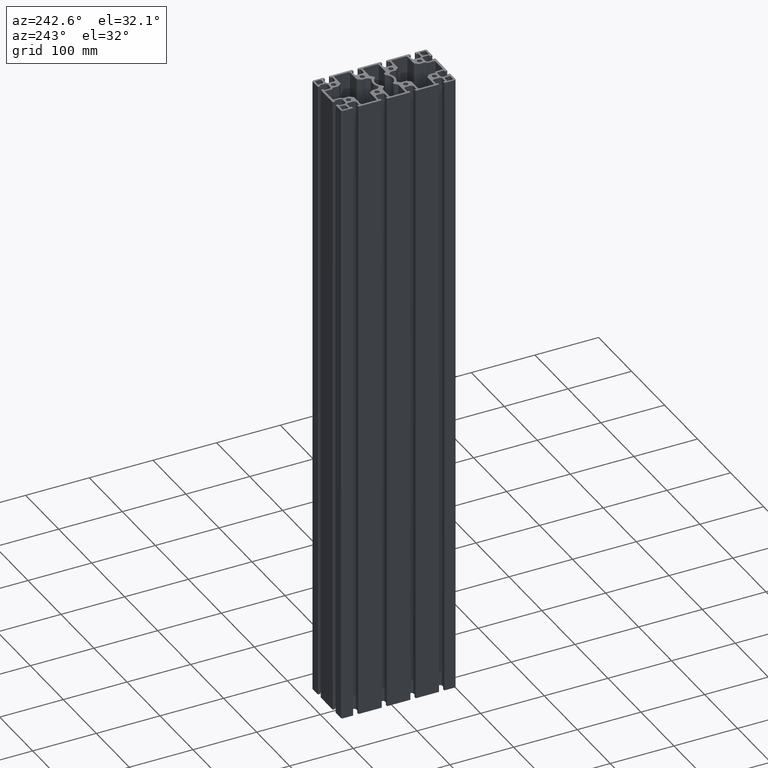
[diagram: clean part render]
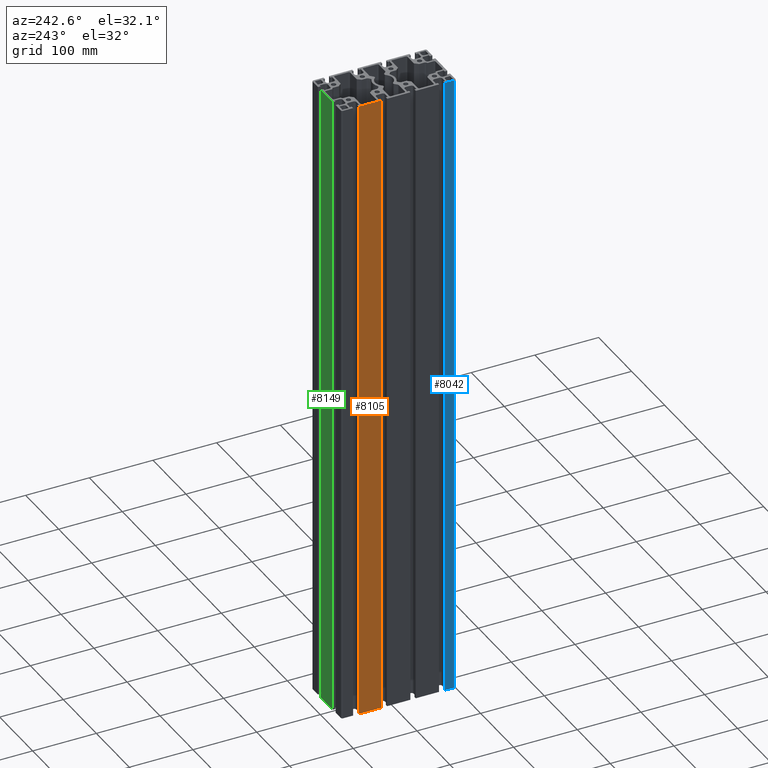
[diagram: same view with three faces highlighted in distinct colors, each labeled with its STEP entity id]
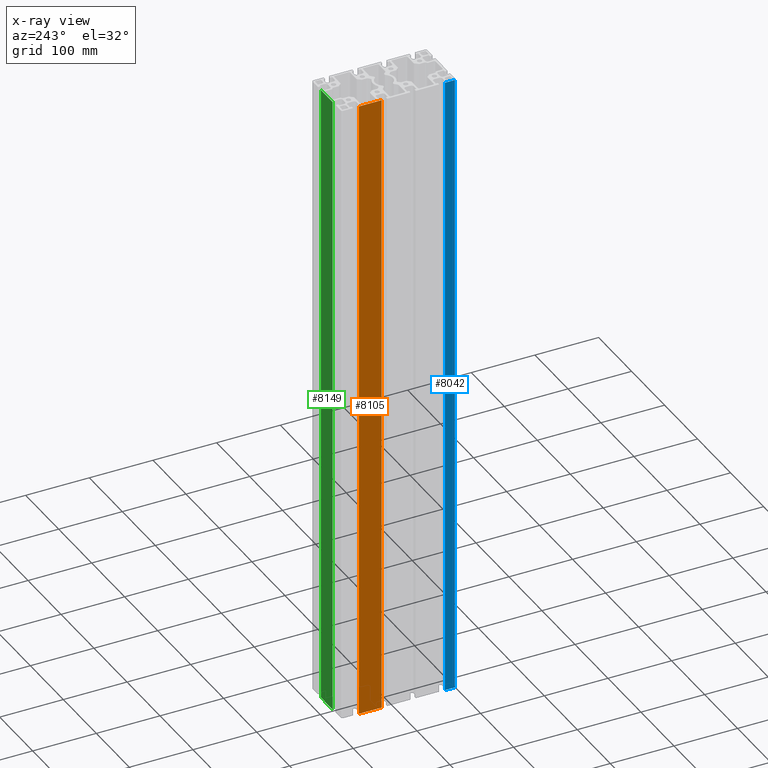
[diagram: x-ray of the same camera — body ghosted, the three highlighted faces saturated]
A machine part, auxiliary view with three faces highlighted in distinct colors.
The next image is the same camera in x-ray (body ghosted, the three faces saturated) — at least one of them is partly hidden behind the body in this view.
Their STEP definitions:

[orange] entity #8105 — the highlighted planar face has unit normal (-1, -0, 0).
#163=PLANE('',#8798);
#511=FACE_OUTER_BOUND('',#921,.T.);
#921=EDGE_LOOP('',(#6209,#6210,#6211,#6212));
#1597=LINE('',#13005,#2437);
#1598=LINE('',#13008,#2438);
#1599=LINE('',#13010,#2439);
#1600=LINE('',#13011,#2440);
#2437=VECTOR('',#10586,10.);
#2438=VECTOR('',#10589,10.);
#2439=VECTOR('',#10590,10.);
#2440=VECTOR('',#10591,10.);
#3673=VERTEX_POINT('',#13001);
#3674=VERTEX_POINT('',#13003);
#3675=VERTEX_POINT('',#13007);
#3676=VERTEX_POINT('',#13009);
#4737=EDGE_CURVE('',#3673,#3674,#1597,.T.);
#4738=EDGE_CURVE('',#3673,#3675,#1598,.T.);
#4739=EDGE_CURVE('',#3676,#3674,#1599,.T.);
#4740=EDGE_CURVE('',#3675,#3676,#1600,.T.);
#6209=ORIENTED_EDGE('',*,*,#4738,.F.);
#6210=ORIENTED_EDGE('',*,*,#4737,.T.);
#6211=ORIENTED_EDGE('',*,*,#4739,.F.);
#6212=ORIENTED_EDGE('',*,*,#4740,.F.);
#8105=ADVANCED_FACE('',(#511),#163,.T.);
#8798=AXIS2_PLACEMENT_3D('',#13006,#10587,#10588);
#10586=DIRECTION('',(0.,0.,1.));
#10587=DIRECTION('center_axis',(-1.,-2.95561894286766E-13,0.));
#10588=DIRECTION('ref_axis',(2.95561894286766E-13,-1.,0.));
#10589=DIRECTION('',(-2.95561894286766E-13,1.,0.));
#10590=DIRECTION('',(2.95561894286766E-13,-1.,0.));
#10591=DIRECTION('',(0.,0.,1.));
#13001=CARTESIAN_POINT('',(-45.0000000000081,27.1499999999868,0.));
#13003=CARTESIAN_POINT('',(-45.0000000000081,27.1499999999868,1000.));
#13005=CARTESIAN_POINT('',(-45.0000000000081,27.1499999999868,0.));
#13006=CARTESIAN_POINT('Origin',(-45.0000000000186,62.8499999999866,0.));
#13007=CARTESIAN_POINT('',(-45.0000000000186,62.8499999999866,0.));
#13008=CARTESIAN_POINT('',(-45.0000000000081,27.1499999999868,0.));
#13009=CARTESIAN_POINT('',(-45.0000000000186,62.8499999999866,1000.));
#13010=CARTESIAN_POINT('',(-45.0000000000081,27.1499999999868,1000.));
#13011=CARTESIAN_POINT('',(-45.0000000000186,62.8499999999866,0.));

[blue] entity #8042 — the highlighted planar face has unit normal (-1, -0, 0).
#124=PLANE('',#8687);
#448=FACE_OUTER_BOUND('',#858,.T.);
#858=EDGE_LOOP('',(#5957,#5958,#5959,#5960));
#1456=LINE('',#12627,#2296);
#1457=LINE('',#12630,#2297);
#1458=LINE('',#12632,#2298);
#1459=LINE('',#12633,#2299);
#2296=VECTOR('',#10223,10.);
#2297=VECTOR('',#10226,10.);
#2298=VECTOR('',#10227,10.);
#2299=VECTOR('',#10228,10.);
#3547=VERTEX_POINT('',#12623);
#3548=VERTEX_POINT('',#12625);
#3549=VERTEX_POINT('',#12629);
#3550=VERTEX_POINT('',#12631);
#4548=EDGE_CURVE('',#3547,#3548,#1456,.T.);
#4549=EDGE_CURVE('',#3547,#3549,#1457,.T.);
#4550=EDGE_CURVE('',#3550,#3548,#1458,.T.);
#4551=EDGE_CURVE('',#3549,#3550,#1459,.T.);
#5957=ORIENTED_EDGE('',*,*,#4549,.F.);
#5958=ORIENTED_EDGE('',*,*,#4548,.T.);
#5959=ORIENTED_EDGE('',*,*,#4550,.F.);
#5960=ORIENTED_EDGE('',*,*,#4551,.F.);
#8042=ADVANCED_FACE('',(#448),#124,.T.);
#8687=AXIS2_PLACEMENT_3D('',#12628,#10224,#10225);
#10223=DIRECTION('',(0.,0.,1.));
#10224=DIRECTION('center_axis',(-1.,-2.93359256539406E-13,0.));
#10225=DIRECTION('ref_axis',(2.93359256539406E-13,-1.,0.));
#10226=DIRECTION('',(-2.93359256539406E-13,1.,0.));
#10227=DIRECTION('',(2.93359256539406E-13,-1.,0.));
#10228=DIRECTION('',(0.,0.,1.));
#12623=CARTESIAN_POINT('',(-44.9999999999741,-87.5000000000126,0.));
#12625=CARTESIAN_POINT('',(-44.9999999999741,-87.5000000000126,1000.));
#12627=CARTESIAN_POINT('',(-44.9999999999741,-87.5000000000126,0.));
#12628=CARTESIAN_POINT('Origin',(-44.9999999999786,-72.1500000000134,0.));
#12629=CARTESIAN_POINT('',(-44.9999999999786,-72.1500000000134,0.));
#12630=CARTESIAN_POINT('',(-44.9999999999741,-87.5000000000126,0.));
#12631=CARTESIAN_POINT('',(-44.9999999999786,-72.1500000000134,1000.));
#12632=CARTESIAN_POINT('',(-44.9999999999741,-87.5000000000126,1000.));
#12633=CARTESIAN_POINT('',(-44.9999999999786,-72.1500000000134,0.));

[green] entity #8149 — the highlighted planar face has unit normal (-0, 1, 0).
#190=PLANE('',#8876);
#555=FACE_OUTER_BOUND('',#965,.T.);
#965=EDGE_LOOP('',(#6385,#6386,#6387,#6388));
#1695=LINE('',#13269,#2535);
#1696=LINE('',#13272,#2536);
#1697=LINE('',#13274,#2537);
#1698=LINE('',#13275,#2538);
#2535=VECTOR('',#10840,10.);
#2536=VECTOR('',#10843,10.);
#2537=VECTOR('',#10844,10.);
#2538=VECTOR('',#10845,10.);
#3761=VERTEX_POINT('',#13265);
#3762=VERTEX_POINT('',#13267);
#3763=VERTEX_POINT('',#13271);
#3764=VERTEX_POINT('',#13273);
#4869=EDGE_CURVE('',#3761,#3762,#1695,.T.);
#4870=EDGE_CURVE('',#3761,#3763,#1696,.T.);
#4871=EDGE_CURVE('',#3764,#3762,#1697,.T.);
#4872=EDGE_CURVE('',#3763,#3764,#1698,.T.);
#6385=ORIENTED_EDGE('',*,*,#4870,.F.);
#6386=ORIENTED_EDGE('',*,*,#4869,.T.);
#6387=ORIENTED_EDGE('',*,*,#4871,.F.);
#6388=ORIENTED_EDGE('',*,*,#4872,.F.);
#8149=ADVANCED_FACE('',(#555),#190,.T.);
#8876=AXIS2_PLACEMENT_3D('',#13270,#10841,#10842);
#10840=DIRECTION('',(0.,0.,1.));
#10841=DIRECTION('center_axis',(-2.93571578500323E-13,1.,0.));
#10842=DIRECTION('ref_axis',(-1.,-2.93571578500323E-13,0.));
#10843=DIRECTION('',(1.,2.93571578500323E-13,0.));
#10844=DIRECTION('',(-1.,-2.93571578500323E-13,0.));
#10845=DIRECTION('',(0.,0.,1.));
#13265=CARTESIAN_POINT('',(-17.8500000000266,89.9999999999947,0.));
#13267=CARTESIAN_POINT('',(-17.8500000000266,89.9999999999947,1000.));
#13269=CARTESIAN_POINT('',(-17.8500000000266,89.9999999999947,0.));
#13270=CARTESIAN_POINT('Origin',(17.8499999999732,90.0000000000052,0.));
#13271=CARTESIAN_POINT('',(17.8499999999732,90.0000000000052,0.));
#13272=CARTESIAN_POINT('',(-17.8500000000266,89.9999999999947,0.));
#13273=CARTESIAN_POINT('',(17.8499999999732,90.0000000000052,1000.));
#13274=CARTESIAN_POINT('',(-17.8500000000266,89.9999999999947,1000.));
#13275=CARTESIAN_POINT('',(17.8499999999732,90.0000000000052,0.));